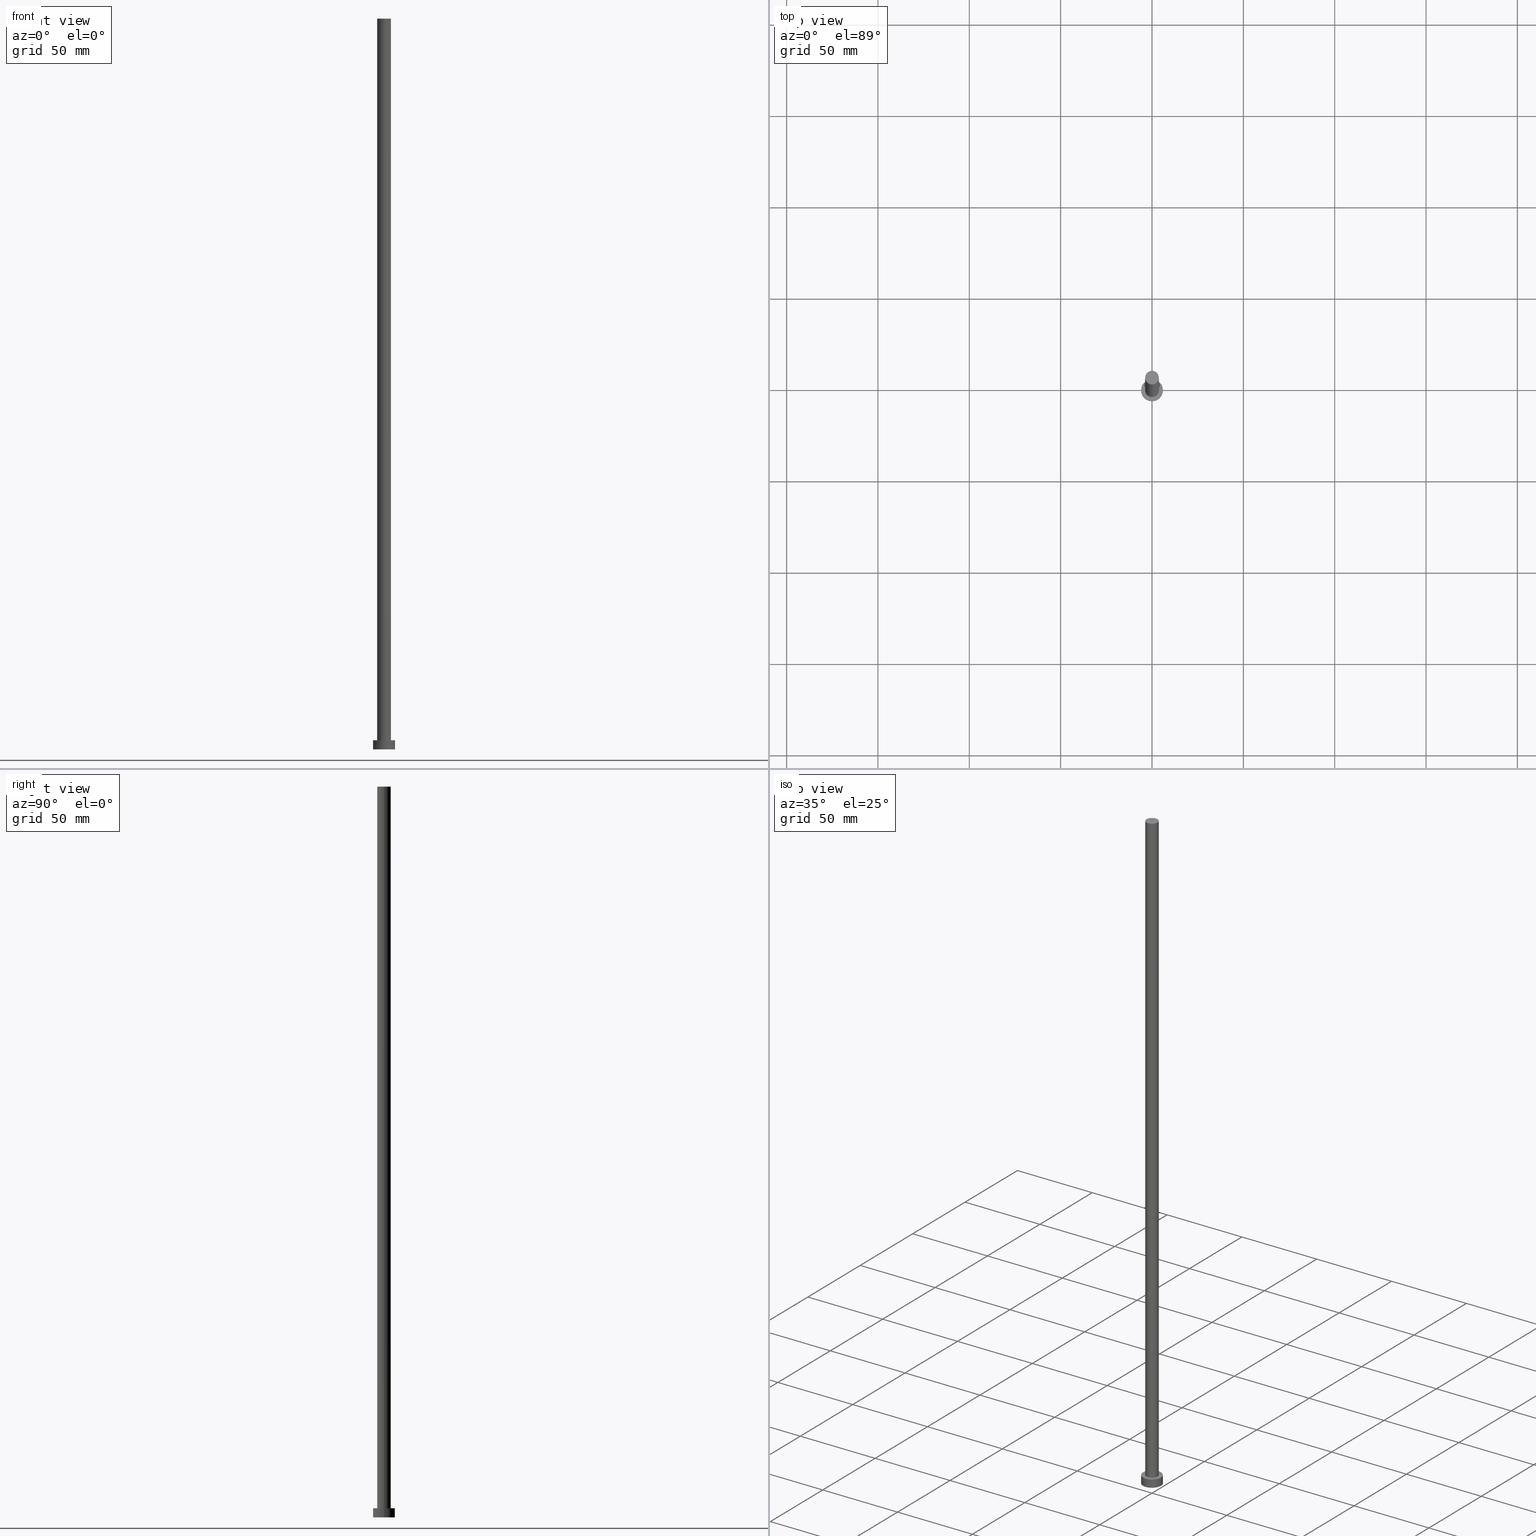
[diagram: canonical four-view strip — front | top / right | iso, engineering-drawing reading convention]
A machine part, canonical four-view strip (front | top / right | iso — engineering-drawing reading convention). The complete STEP part file that produces these views, byte-faithful:
ISO-10303-21;
HEADER;
FILE_DESCRIPTION (( 'STEP AP203' ),
    '1' );
FILE_NAME ('2f7f.STEP',
    '2023-02-13T14:46:22',
    ( '' ),
    ( '' ),
    'SwSTEP 2.0',
    'SolidWorks 2019',
    '' );
FILE_SCHEMA (( 'CONFIG_CONTROL_DESIGN' ));
ENDSEC;

DATA;
#1 = LOCAL_TIME ( 15, 46, 22.00000000000000000, #227 ) ;
#2 = PERSON_AND_ORGANIZATION ( #131, #56 ) ;
#3 = PLANE ( 'NONE',  #79 ) ;
#4 = EDGE_CURVE ( 'NONE', #28, #50, #139, .T. ) ;
#5 = DIRECTION ( 'NONE',  ( -0.000000000000000000, -0.000000000000000000, -1.000000000000000000 ) ) ;
#6 = DIRECTION ( 'NONE',  ( -1.000000000000000000, 0.000000000000000000, 0.000000000000000000 ) ) ;
#7 = ORIENTED_EDGE ( 'NONE', *, *, #106, .T. ) ;
#8 = FACE_OUTER_BOUND ( 'NONE', #147, .T. ) ;
#9 =( NAMED_UNIT ( * ) SI_UNIT ( $, .STERADIAN. ) SOLID_ANGLE_UNIT ( ) );
#10 = APPROVAL_ROLE ( '' ) ;
#11 = ADVANCED_FACE ( 'NONE', ( #33 ), #117, .T. ) ;
#12 = DIRECTION ( 'NONE',  ( 0.000000000000000000, 0.000000000000000000, 1.000000000000000000 ) ) ;
#13 = PERSON_AND_ORGANIZATION ( #131, #56 ) ;
#14 = ORIENTED_EDGE ( 'NONE', *, *, #229, .T. ) ;
#15 = CYLINDRICAL_SURFACE ( 'NONE', #157, 3.750000000000000000 ) ;
#16 = DIRECTION ( 'NONE',  ( 0.000000000000000000, 0.000000000000000000, 1.000000000000000000 ) ) ;
#17 = FACE_OUTER_BOUND ( 'NONE', #89, .T. ) ;
#18 = DIRECTION ( 'NONE',  ( -0.000000000000000000, -0.000000000000000000, -1.000000000000000000 ) ) ;
#19 = APPROVAL_PERSON_ORGANIZATION ( #2, #82, #231 ) ;
#20 = AXIS2_PLACEMENT_3D ( 'NONE', #55, #135, #177 ) ;
#21 = CC_DESIGN_DATE_AND_TIME_ASSIGNMENT ( #176, #80, ( #61 ) ) ;
#22 = DIRECTION ( 'NONE',  ( -0.000000000000000000, -0.000000000000000000, -1.000000000000000000 ) ) ;
#23 = COORDINATED_UNIVERSAL_TIME_OFFSET ( 1, 0, .AHEAD. ) ;
#24 = CC_DESIGN_PERSON_AND_ORGANIZATION_ASSIGNMENT ( #186, #209, ( #41 ) ) ;
#25 = CALENDAR_DATE ( 2023, 13, 2 ) ;
#26 = ORIENTED_EDGE ( 'NONE', *, *, #106, .F. ) ;
#27 = APPROVAL ( #239, 'NEUR�EN�' ) ;
#28 = VERTEX_POINT ( 'NONE', #114 ) ;
#29 = CARTESIAN_POINT ( 'NONE',  ( 0.000000000000000000, 0.000000000000000000, 5.000000000000000000 ) ) ;
#30 = ORIENTED_EDGE ( 'NONE', *, *, #77, .F. ) ;
#31 = ORIENTED_EDGE ( 'NONE', *, *, #100, .T. ) ;
#32 = APPLICATION_CONTEXT ( 'configuration controlled 3d designs of mechanical parts and assemblies' ) ;
#33 = FACE_OUTER_BOUND ( 'NONE', #154, .T. ) ;
#34 = CIRCLE ( 'NONE', #92, 6.000000000000000888 ) ;
#35 = DIRECTION ( 'NONE',  ( -1.000000000000000000, 0.000000000000000000, 0.000000000000000000 ) ) ;
#36 = DIRECTION ( 'NONE',  ( -0.000000000000000000, -0.000000000000000000, -1.000000000000000000 ) ) ;
#37 = APPROVAL_PERSON_ORGANIZATION ( #168, #58, #10 ) ;
#38 = PERSON_AND_ORGANIZATION_ROLE ( 'creator' ) ;
#39 = ADVANCED_FACE ( 'NONE', ( #149 ), #244, .T. ) ;
#40 = AXIS2_PLACEMENT_3D ( 'NONE', #136, #219, #35 ) ;
#41 = PRODUCT_DEFINITION_FORMATION_WITH_SPECIFIED_SOURCE ( 'LIBOVOLN�', '', #162, .NOT_KNOWN. ) ;
#42 = COORDINATED_UNIVERSAL_TIME_OFFSET ( 1, 0, .AHEAD. ) ;
#43 = EDGE_CURVE ( 'NONE', #193, #169, #207, .T. ) ;
#44 = CYLINDRICAL_SURFACE ( 'NONE', #76, 6.000000000000000888 ) ;
#45 = DIRECTION ( 'NONE',  ( -0.000000000000000000, -0.000000000000000000, -1.000000000000000000 ) ) ;
#46 = PERSON_AND_ORGANIZATION_ROLE ( 'classification_officer' ) ;
#47 = DIRECTION ( 'NONE',  ( -0.000000000000000000, -0.000000000000000000, -1.000000000000000000 ) ) ;
#48 = EDGE_LOOP ( 'NONE', ( #132, #129 ) ) ;
#49 = DIRECTION ( 'NONE',  ( 1.000000000000000000, 0.000000000000000000, 0.000000000000000000 ) ) ;
#50 = VERTEX_POINT ( 'NONE', #146 ) ;
#51 = CARTESIAN_POINT ( 'NONE',  ( 0.000000000000000000, 0.000000000000000000, 5.000000000000000000 ) ) ;
#52 = CARTESIAN_POINT ( 'NONE',  ( 3.750000000000000000, 4.592425496802572986E-16, 400.0000000000000000 ) ) ;
#53 = CIRCLE ( 'NONE', #202, 3.750000000000000000 ) ;
#54 = CARTESIAN_POINT ( 'NONE',  ( 0.000000000000000000, 0.000000000000000000, 0.000000000000000000 ) ) ;
#55 = CARTESIAN_POINT ( 'NONE',  ( 0.000000000000000000, 0.000000000000000000, 5.000000000000000000 ) ) ;
#56 = ORGANIZATION ( 'NEUR�EN�', 'NEUR�EN�', '' ) ;
#57 = APPROVAL_ROLE ( '' ) ;
#58 = APPROVAL ( #210, 'NEUR�EN�' ) ;
#59 = CLOSED_SHELL ( 'NONE', ( #74, #161, #102, #194, #116, #11, #39 ) ) ;
#60 = AXIS2_PLACEMENT_3D ( 'NONE', #133, #198, #201 ) ;
#61 = PRODUCT_DEFINITION ( 'NEZN�M�', '', #41, #156 ) ;
#62 =( LENGTH_UNIT ( ) NAMED_UNIT ( * ) SI_UNIT ( .MILLI., .METRE. ) );
#63 = DATE_TIME_ROLE ( 'classification_date' ) ;
#64 = CARTESIAN_POINT ( 'NONE',  ( 0.000000000000000000, 0.000000000000000000, 400.0000000000000000 ) ) ;
#65 = ORIENTED_EDGE ( 'NONE', *, *, #96, .F. ) ;
#66 = FACE_OUTER_BOUND ( 'NONE', #48, .T. ) ;
#67 = EDGE_CURVE ( 'NONE', #93, #160, #88, .T. ) ;
#68 = PERSON_AND_ORGANIZATION_ROLE ( 'design_supplier' ) ;
#69 = AXIS2_PLACEMENT_3D ( 'NONE', #29, #22, #6 ) ;
#70 = ORIENTED_EDGE ( 'NONE', *, *, #100, .F. ) ;
#71 = APPLICATION_PROTOCOL_DEFINITION ( 'international standard', 'config_control_design', 1994, #152 ) ;
#72 = DATE_AND_TIME ( #99, #1 ) ;
#73 = ORIENTED_EDGE ( 'NONE', *, *, #96, .T. ) ;
#74 = ADVANCED_FACE ( 'NONE', ( #159 ), #15, .T. ) ;
#75 = ORIENTED_EDGE ( 'NONE', *, *, #151, .T. ) ;
#76 = AXIS2_PLACEMENT_3D ( 'NONE', #172, #47, #126 ) ;
#77 = EDGE_CURVE ( 'NONE', #169, #252, #121, .T. ) ;
#78 = CARTESIAN_POINT ( 'NONE',  ( -6.000000000000000888, 0.000000000000000000, 5.000000000000000000 ) ) ;
#79 = AXIS2_PLACEMENT_3D ( 'NONE', #148, #155, #206 ) ;
#80 = DATE_TIME_ROLE ( 'creation_date' ) ;
#81 = ORIENTED_EDGE ( 'NONE', *, *, #140, .F. ) ;
#82 = APPROVAL ( #166, 'NEUR�EN�' ) ;
#83 = CIRCLE ( 'NONE', #238, 6.000000000000000888 ) ;
#84 = SECURITY_CLASSIFICATION_LEVEL ( 'unclassified' ) ;
#85 = PERSON_AND_ORGANIZATION ( #131, #56 ) ;
#86 = DIRECTION ( 'NONE',  ( 1.000000000000000000, 0.000000000000000000, 0.000000000000000000 ) ) ;
#87 = CARTESIAN_POINT ( 'NONE',  ( -3.750000000000000000, 0.000000000000000000, 400.0000000000000000 ) ) ;
#88 = LINE ( 'NONE', #115, #134 ) ;
#89 = EDGE_LOOP ( 'NONE', ( #248, #192, #127, #212 ) ) ;
#90 = DIRECTION ( 'NONE',  ( 0.000000000000000000, 0.000000000000000000, 1.000000000000000000 ) ) ;
#91 = COORDINATED_UNIVERSAL_TIME_OFFSET ( 1, 0, .AHEAD. ) ;
#92 = AXIS2_PLACEMENT_3D ( 'NONE', #122, #205, #107 ) ;
#93 = VERTEX_POINT ( 'NONE', #78 ) ;
#94 = CARTESIAN_POINT ( 'NONE',  ( -3.750000000000000000, 0.000000000000000000, 5.000000000000000000 ) ) ;
#95 = DIRECTION ( 'NONE',  ( 0.000000000000000000, 0.000000000000000000, 1.000000000000000000 ) ) ;
#96 = EDGE_CURVE ( 'NONE', #160, #50, #171, .T. ) ;
#97 = ORIENTED_EDGE ( 'NONE', *, *, #4, .F. ) ;
#98 = APPROVAL_DATE_TIME ( #72, #27 ) ;
#99 = CALENDAR_DATE ( 2023, 13, 2 ) ;
#100 = EDGE_CURVE ( 'NONE', #193, #217, #53, .T. ) ;
#101 = LOCAL_TIME ( 15, 46, 22.00000000000000000, #91 ) ;
#102 = ADVANCED_FACE ( 'NONE', ( #232 ), #44, .T. ) ;
#103 = PLANE ( 'NONE',  #226 ) ;
#104 = ADVANCED_BREP_SHAPE_REPRESENTATION ( '2f7f', ( #251, #60 ), #105 ) ;
#105 =( GEOMETRIC_REPRESENTATION_CONTEXT ( 3 ) GLOBAL_UNCERTAINTY_ASSIGNED_CONTEXT ( ( #195 ) ) GLOBAL_UNIT_ASSIGNED_CONTEXT ( ( #62, #189, #9 ) ) REPRESENTATION_CONTEXT ( 'NONE', 'WORKASPACE' ) );
#106 = EDGE_CURVE ( 'NONE', #252, #169, #237, .T. ) ;
#107 = DIRECTION ( 'NONE',  ( 1.000000000000000000, 0.000000000000000000, 0.000000000000000000 ) ) ;
#108 = CARTESIAN_POINT ( 'NONE',  ( 0.000000000000000000, 0.000000000000000000, 5.000000000000000000 ) ) ;
#109 = SHAPE_DEFINITION_REPRESENTATION ( #180, #104 ) ;
#110 = DATE_AND_TIME ( #25, #101 ) ;
#111 = ORIENTED_EDGE ( 'NONE', *, *, #43, .F. ) ;
#112 = CARTESIAN_POINT ( 'NONE',  ( 0.000000000000000000, 0.000000000000000000, 400.0000000000000000 ) ) ;
#113 = CIRCLE ( 'NONE', #173, 6.000000000000000888 ) ;
#114 = CARTESIAN_POINT ( 'NONE',  ( 6.000000000000000888, 7.347880794884120722E-16, 5.000000000000000000 ) ) ;
#115 = CARTESIAN_POINT ( 'NONE',  ( -6.000000000000000888, 0.000000000000000000, 5.000000000000000000 ) ) ;
#116 = ADVANCED_FACE ( 'NONE', ( #8 ), #103, .F. ) ;
#117 = CYLINDRICAL_SURFACE ( 'NONE', #40, 3.750000000000000000 ) ;
#118 = CARTESIAN_POINT ( 'NONE',  ( 0.000000000000000000, 0.000000000000000000, 400.0000000000000000 ) ) ;
#119 = CIRCLE ( 'NONE', #240, 3.750000000000000000 ) ;
#120 = CC_DESIGN_PERSON_AND_ORGANIZATION_ASSIGNMENT ( #13, #38, ( #61 ) ) ;
#121 = CIRCLE ( 'NONE', #20, 3.750000000000000000 ) ;
#122 = CARTESIAN_POINT ( 'NONE',  ( 0.000000000000000000, 0.000000000000000000, 5.000000000000000000 ) ) ;
#123 = DIRECTION ( 'NONE',  ( 1.000000000000000000, 0.000000000000000000, -0.000000000000000000 ) ) ;
#124 = CC_DESIGN_PERSON_AND_ORGANIZATION_ASSIGNMENT ( #85, #46, ( #191 ) ) ;
#125 = ORIENTED_EDGE ( 'NONE', *, *, #199, .F. ) ;
#126 = DIRECTION ( 'NONE',  ( -1.000000000000000000, 0.000000000000000000, 0.000000000000000000 ) ) ;
#127 = ORIENTED_EDGE ( 'NONE', *, *, #199, .T. ) ;
#128 = PRODUCT_RELATED_PRODUCT_CATEGORY ( 'detail', '', ( #162 ) ) ;
#129 = ORIENTED_EDGE ( 'NONE', *, *, #255, .T. ) ;
#130 = AXIS2_PLACEMENT_3D ( 'NONE', #51, #16, #214 ) ;
#131 = PERSON ( 'NEUR�EN�', 'NEUR�EN�', 'NEUR�EN�', ('NEUR�EN�'), ('NEUR�EN�'), ('NEUR�EN�') ) ;
#132 = ORIENTED_EDGE ( 'NONE', *, *, #140, .T. ) ;
#133 = CARTESIAN_POINT ( 'NONE',  ( 0.000000000000000000, 0.000000000000000000, 0.000000000000000000 ) ) ;
#134 = VECTOR ( 'NONE', #222, 1000.000000000000000 ) ;
#135 = DIRECTION ( 'NONE',  ( 0.000000000000000000, 0.000000000000000000, 1.000000000000000000 ) ) ;
#136 = CARTESIAN_POINT ( 'NONE',  ( 0.000000000000000000, 0.000000000000000000, 400.0000000000000000 ) ) ;
#137 = COORDINATED_UNIVERSAL_TIME_OFFSET ( 1, 0, .AHEAD. ) ;
#138 = PERSON_AND_ORGANIZATION_ROLE ( 'design_owner' ) ;
#139 = LINE ( 'NONE', #224, #215 ) ;
#140 = EDGE_CURVE ( 'NONE', #93, #28, #34, .T. ) ;
#141 = APPROVAL_DATE_TIME ( #197, #82 ) ;
#142 = AXIS2_PLACEMENT_3D ( 'NONE', #250, #153, #49 ) ;
#143 = DATE_AND_TIME ( #163, #230 ) ;
#144 = DIRECTION ( 'NONE',  ( 1.000000000000000000, 0.000000000000000000, 0.000000000000000000 ) ) ;
#145 = DIRECTION ( 'NONE',  ( 1.000000000000000000, 0.000000000000000000, 0.000000000000000000 ) ) ;
#146 = CARTESIAN_POINT ( 'NONE',  ( 6.000000000000000888, 7.347880794884120722E-16, 0.000000000000000000 ) ) ;
#147 = EDGE_LOOP ( 'NONE', ( #65, #125 ) ) ;
#148 = CARTESIAN_POINT ( 'NONE',  ( 0.000000000000000000, 0.000000000000000000, 5.000000000000000000 ) ) ;
#149 = FACE_OUTER_BOUND ( 'NONE', #234, .T. ) ;
#150 = FACE_BOUND ( 'NONE', #235, .T. ) ;
#151 = EDGE_CURVE ( 'NONE', #217, #252, #183, .T. ) ;
#152 = APPLICATION_CONTEXT ( 'configuration controlled 3d designs of mechanical parts and assemblies' ) ;
#153 = DIRECTION ( 'NONE',  ( 0.000000000000000000, 0.000000000000000000, 1.000000000000000000 ) ) ;
#154 = EDGE_LOOP ( 'NONE', ( #111, #233, #75, #7 ) ) ;
#155 = DIRECTION ( 'NONE',  ( 0.000000000000000000, 0.000000000000000000, 1.000000000000000000 ) ) ;
#156 = DESIGN_CONTEXT ( 'detailed design', #32, 'design' ) ;
#157 = AXIS2_PLACEMENT_3D ( 'NONE', #118, #36, #175 ) ;
#158 = CC_DESIGN_APPROVAL ( #58, ( #41 ) ) ;
#159 = FACE_OUTER_BOUND ( 'NONE', #221, .T. ) ;
#160 = VERTEX_POINT ( 'NONE', #225 ) ;
#161 = ADVANCED_FACE ( 'NONE', ( #17 ), #167, .T. ) ;
#162 = PRODUCT ( '2f7f', '2f7f', '', ( #220 ) ) ;
#163 = CALENDAR_DATE ( 2023, 13, 2 ) ;
#164 = DIRECTION ( 'NONE',  ( 0.000000000000000000, 0.000000000000000000, 1.000000000000000000 ) ) ;
#165 = LOCAL_TIME ( 15, 46, 22.00000000000000000, #23 ) ;
#166 = APPROVAL_STATUS ( 'not_yet_approved' ) ;
#167 = CYLINDRICAL_SURFACE ( 'NONE', #69, 6.000000000000000888 ) ;
#168 = PERSON_AND_ORGANIZATION ( #131, #56 ) ;
#169 = VERTEX_POINT ( 'NONE', #246 ) ;
#170 = PERSON_AND_ORGANIZATION ( #131, #56 ) ;
#171 = CIRCLE ( 'NONE', #142, 6.000000000000000888 ) ;
#172 = CARTESIAN_POINT ( 'NONE',  ( 0.000000000000000000, 0.000000000000000000, 5.000000000000000000 ) ) ;
#173 = AXIS2_PLACEMENT_3D ( 'NONE', #108, #164, #242 ) ;
#174 = ORIENTED_EDGE ( 'NONE', *, *, #151, .F. ) ;
#175 = DIRECTION ( 'NONE',  ( -1.000000000000000000, 0.000000000000000000, 0.000000000000000000 ) ) ;
#176 = DATE_AND_TIME ( #181, #213 ) ;
#177 = DIRECTION ( 'NONE',  ( 1.000000000000000000, 0.000000000000000000, 0.000000000000000000 ) ) ;
#178 = CC_DESIGN_PERSON_AND_ORGANIZATION_ASSIGNMENT ( #216, #138, ( #162 ) ) ;
#179 = ORIENTED_EDGE ( 'NONE', *, *, #43, .T. ) ;
#180 = PRODUCT_DEFINITION_SHAPE ( 'NONE', 'NONE',  #61 ) ;
#181 = CALENDAR_DATE ( 2023, 13, 2 ) ;
#182 = DIRECTION ( 'NONE',  ( 1.000000000000000000, 0.000000000000000000, -0.000000000000000000 ) ) ;
#183 = LINE ( 'NONE', #87, #218 ) ;
#184 = CC_DESIGN_APPROVAL ( #82, ( #191 ) ) ;
#185 = CALENDAR_DATE ( 2023, 13, 2 ) ;
#186 = PERSON_AND_ORGANIZATION ( #131, #56 ) ;
#187 = APPROVAL_DATE_TIME ( #110, #58 ) ;
#188 = CC_DESIGN_PERSON_AND_ORGANIZATION_ASSIGNMENT ( #170, #68, ( #41 ) ) ;
#189 =( NAMED_UNIT ( * ) PLANE_ANGLE_UNIT ( ) SI_UNIT ( $, .RADIAN. ) );
#190 = CARTESIAN_POINT ( 'NONE',  ( 0.000000000000000000, 0.000000000000000000, 0.000000000000000000 ) ) ;
#191 = SECURITY_CLASSIFICATION ( '', '', #84 ) ;
#192 = ORIENTED_EDGE ( 'NONE', *, *, #4, .T. ) ;
#193 = VERTEX_POINT ( 'NONE', #52 ) ;
#194 = ADVANCED_FACE ( 'NONE', ( #150, #66 ), #3, .T. ) ;
#195 = UNCERTAINTY_MEASURE_WITH_UNIT (LENGTH_MEASURE( 1.000000000000000082E-05 ), #62, 'distance_accuracy_value', 'NONE');
#196 = ORIENTED_EDGE ( 'NONE', *, *, #67, .T. ) ;
#197 = DATE_AND_TIME ( #185, #165 ) ;
#198 = DIRECTION ( 'NONE',  ( 0.000000000000000000, 0.000000000000000000, 1.000000000000000000 ) ) ;
#199 = EDGE_CURVE ( 'NONE', #50, #160, #83, .T. ) ;
#200 = PERSON_AND_ORGANIZATION ( #131, #56 ) ;
#201 = DIRECTION ( 'NONE',  ( 1.000000000000000000, 0.000000000000000000, 0.000000000000000000 ) ) ;
#202 = AXIS2_PLACEMENT_3D ( 'NONE', #112, #12, #145 ) ;
#203 = CC_DESIGN_APPROVAL ( #27, ( #61 ) ) ;
#204 = DIRECTION ( 'NONE',  ( 0.000000000000000000, 0.000000000000000000, 1.000000000000000000 ) ) ;
#205 = DIRECTION ( 'NONE',  ( 0.000000000000000000, 0.000000000000000000, 1.000000000000000000 ) ) ;
#206 = DIRECTION ( 'NONE',  ( 1.000000000000000000, 0.000000000000000000, -0.000000000000000000 ) ) ;
#207 = LINE ( 'NONE', #211, #254 ) ;
#208 = CARTESIAN_POINT ( 'NONE',  ( 0.000000000000000000, 0.000000000000000000, 400.0000000000000000 ) ) ;
#209 = PERSON_AND_ORGANIZATION_ROLE ( 'creator' ) ;
#210 = APPROVAL_STATUS ( 'not_yet_approved' ) ;
#211 = CARTESIAN_POINT ( 'NONE',  ( 3.750000000000000000, 4.592425496802572986E-16, 400.0000000000000000 ) ) ;
#212 = ORIENTED_EDGE ( 'NONE', *, *, #67, .F. ) ;
#213 = LOCAL_TIME ( 15, 46, 22.00000000000000000, #137 ) ;
#214 = DIRECTION ( 'NONE',  ( 1.000000000000000000, 0.000000000000000000, 0.000000000000000000 ) ) ;
#215 = VECTOR ( 'NONE', #18, 1000.000000000000000 ) ;
#216 = PERSON_AND_ORGANIZATION ( #131, #56 ) ;
#217 = VERTEX_POINT ( 'NONE', #249 ) ;
#218 = VECTOR ( 'NONE', #45, 1000.000000000000000 ) ;
#219 = DIRECTION ( 'NONE',  ( -0.000000000000000000, -0.000000000000000000, -1.000000000000000000 ) ) ;
#220 = MECHANICAL_CONTEXT ( 'NONE', #152, 'mechanical' ) ;
#221 = EDGE_LOOP ( 'NONE', ( #70, #179, #236, #174 ) ) ;
#222 = DIRECTION ( 'NONE',  ( -0.000000000000000000, -0.000000000000000000, -1.000000000000000000 ) ) ;
#223 = APPLICATION_PROTOCOL_DEFINITION ( 'international standard', 'config_control_design', 1994, #32 ) ;
#224 = CARTESIAN_POINT ( 'NONE',  ( 6.000000000000000888, 7.347880794884120722E-16, 5.000000000000000000 ) ) ;
#225 = CARTESIAN_POINT ( 'NONE',  ( -6.000000000000000888, 0.000000000000000000, 0.000000000000000000 ) ) ;
#226 = AXIS2_PLACEMENT_3D ( 'NONE', #54, #204, #182 ) ;
#227 = COORDINATED_UNIVERSAL_TIME_OFFSET ( 1, 0, .AHEAD. ) ;
#228 = APPROVAL_PERSON_ORGANIZATION ( #200, #27, #57 ) ;
#229 = EDGE_CURVE ( 'NONE', #217, #193, #119, .T. ) ;
#230 = LOCAL_TIME ( 15, 46, 22.00000000000000000, #42 ) ;
#231 = APPROVAL_ROLE ( '' ) ;
#232 = FACE_OUTER_BOUND ( 'NONE', #245, .T. ) ;
#233 = ORIENTED_EDGE ( 'NONE', *, *, #229, .F. ) ;
#234 = EDGE_LOOP ( 'NONE', ( #14, #31 ) ) ;
#235 = EDGE_LOOP ( 'NONE', ( #26, #30 ) ) ;
#236 = ORIENTED_EDGE ( 'NONE', *, *, #77, .T. ) ;
#237 = CIRCLE ( 'NONE', #130, 3.750000000000000000 ) ;
#238 = AXIS2_PLACEMENT_3D ( 'NONE', #190, #243, #144 ) ;
#239 = APPROVAL_STATUS ( 'not_yet_approved' ) ;
#240 = AXIS2_PLACEMENT_3D ( 'NONE', #208, #90, #86 ) ;
#241 = CC_DESIGN_DATE_AND_TIME_ASSIGNMENT ( #143, #63, ( #191 ) ) ;
#242 = DIRECTION ( 'NONE',  ( 1.000000000000000000, 0.000000000000000000, 0.000000000000000000 ) ) ;
#243 = DIRECTION ( 'NONE',  ( 0.000000000000000000, 0.000000000000000000, 1.000000000000000000 ) ) ;
#244 = PLANE ( 'NONE',  #247 ) ;
#245 = EDGE_LOOP ( 'NONE', ( #97, #81, #196, #73 ) ) ;
#246 = CARTESIAN_POINT ( 'NONE',  ( 3.750000000000000000, 4.592425496802572986E-16, 5.000000000000000000 ) ) ;
#247 = AXIS2_PLACEMENT_3D ( 'NONE', #64, #95, #123 ) ;
#248 = ORIENTED_EDGE ( 'NONE', *, *, #255, .F. ) ;
#249 = CARTESIAN_POINT ( 'NONE',  ( -3.750000000000000000, 0.000000000000000000, 400.0000000000000000 ) ) ;
#250 = CARTESIAN_POINT ( 'NONE',  ( 0.000000000000000000, 0.000000000000000000, 0.000000000000000000 ) ) ;
#251 = MANIFOLD_SOLID_BREP ( 'P�idat vysunut�m3', #59 ) ;
#252 = VERTEX_POINT ( 'NONE', #94 ) ;
#253 = CC_DESIGN_SECURITY_CLASSIFICATION ( #191, ( #41 ) ) ;
#254 = VECTOR ( 'NONE', #5, 1000.000000000000000 ) ;
#255 = EDGE_CURVE ( 'NONE', #28, #93, #113, .T. ) ;
ENDSEC;
END-ISO-10303-21;
